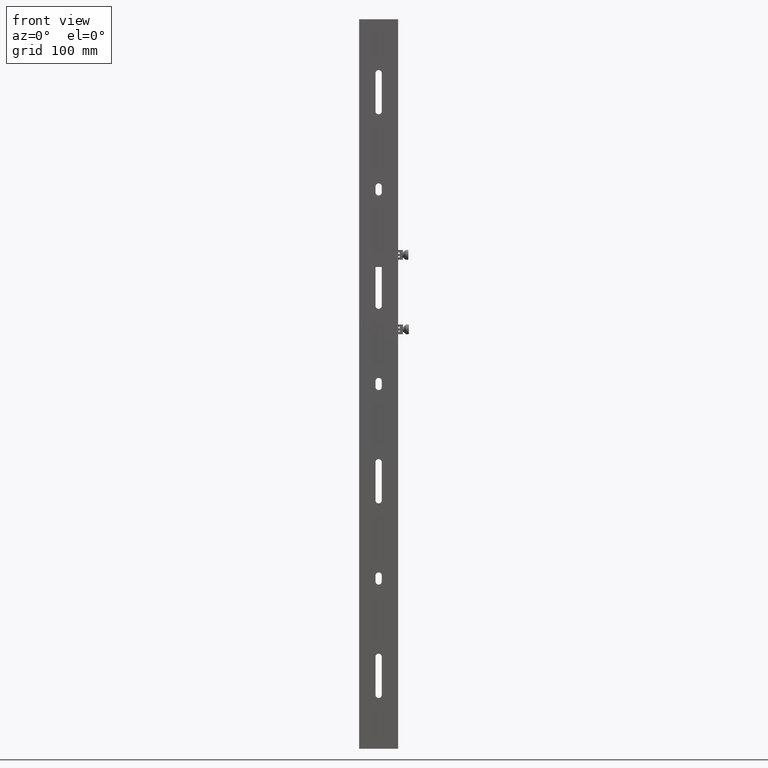
[diagram: clean part render]
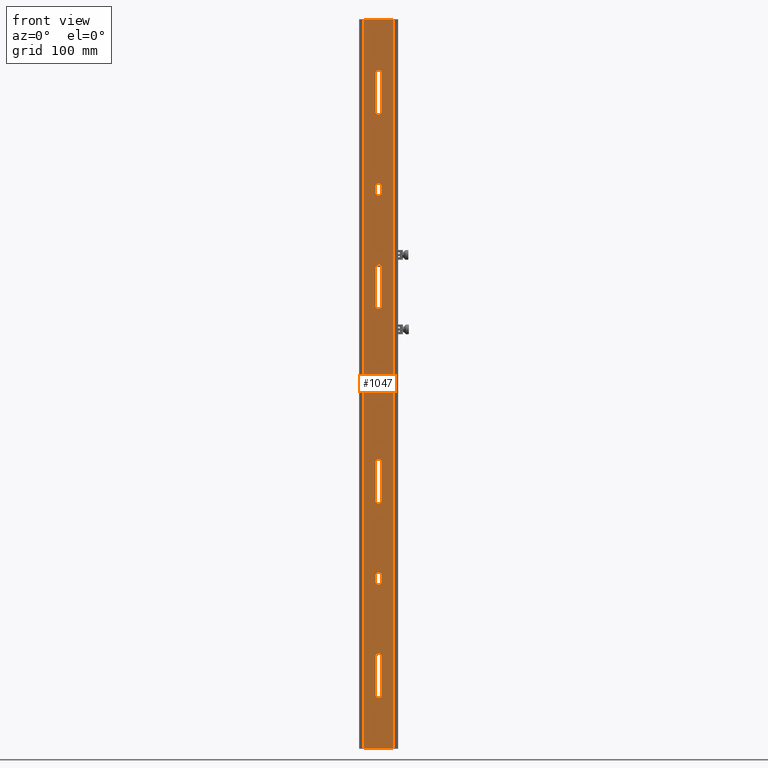
[diagram: same view with one face highlighted and labeled with its STEP entity id]
A machine part, front view. The second image highlights one B-rep face of the part: STEP entity #1047.
In plain terms, the highlighted planar face has unit normal (0, -1, 0).
Its self-contained STEP definition (entity closure, byte-faithful):
#38 = ORIENTED_EDGE ( 'NONE', *, *, #3731, .T. ) ;
#54 = CARTESIAN_POINT ( 'NONE',  ( 3.582091887506006239E-15, 119.5000000000000000, 5.999999999999996447 ) ) ;
#62 = LINE ( 'NONE', #4931, #339 ) ;
#65 = CARTESIAN_POINT ( 'NONE',  ( -3.250000000000001332, -119.5000000000000000, 5.999999999999996447 ) ) ;
#69 = VERTEX_POINT ( 'NONE', #140 ) ;
#74 = ORIENTED_EDGE ( 'NONE', *, *, #597, .T. ) ;
#140 = CARTESIAN_POINT ( 'NONE',  ( 3.249999999999997335, 203.0000000000000000, 5.999999999999996447 ) ) ;
#170 = VECTOR ( 'NONE', #5992, 1000.000000000000000 ) ;
#180 = ORIENTED_EDGE ( 'NONE', *, *, #4777, .T. ) ;
#250 = CARTESIAN_POINT ( 'NONE',  ( 5.510910596163088569E-16, -197.0000000000000000, 5.999999999999996447 ) ) ;
#273 = CARTESIAN_POINT ( 'NONE',  ( 3.249999999999996447, 197.0000000000000000, 5.999999999999996447 ) ) ;
#302 = CIRCLE ( 'NONE', #2728, 3.249999999999997780 ) ;
#339 = VECTOR ( 'NONE', #4373, 1000.000000000000000 ) ;
#346 = VECTOR ( 'NONE', #1276, 1000.000000000000000 ) ;
#381 = DIRECTION ( 'NONE',  ( 1.000000000000000000, 0.000000000000000000, 0.000000000000000000 ) ) ;
#426 = CARTESIAN_POINT ( 'NONE',  ( -3.249999999999998224, -2.999999999999999556, 5.999999999999996447 ) ) ;
#432 = DIRECTION ( 'NONE',  ( 1.000000000000000000, 0.000000000000000000, 0.000000000000000000 ) ) ;
#466 = CARTESIAN_POINT ( 'NONE',  ( 0.000000000000000000, 0.000000000000000000, 5.999999999999996447 ) ) ;
#472 = CIRCLE ( 'NONE', #1867, 3.249999999999997780 ) ;
#536 = EDGE_CURVE ( 'NONE', #918, #1851, #472, .T. ) ;
#551 = EDGE_CURVE ( 'NONE', #7131, #6088, #2245, .T. ) ;
#571 = CARTESIAN_POINT ( 'NONE',  ( -3.250000000000002665, 280.5000000000000000, 5.999999999999996447 ) ) ;
#597 = EDGE_CURVE ( 'NONE', #1305, #4832, #4667, .T. ) ;
#671 = VERTEX_POINT ( 'NONE', #3609 ) ;
#675 = LINE ( 'NONE', #1312, #346 ) ;
#721 = CARTESIAN_POINT ( 'NONE',  ( 3.249999999999996447, -5.970153145843339459E-16, 5.999999999999996447 ) ) ;
#741 = CARTESIAN_POINT ( 'NONE',  ( -3.249999999999997335, -197.0000000000000000, 5.999999999999996447 ) ) ;
#827 = DIRECTION ( 'NONE',  ( 1.000000000000000000, 0.000000000000000000, 0.000000000000000000 ) ) ;
#830 = DIRECTION ( 'NONE',  ( 1.000000000000000000, 0.000000000000000000, 0.000000000000000000 ) ) ;
#840 = LINE ( 'NONE', #6379, #2985 ) ;
#843 = DIRECTION ( 'NONE',  ( 0.000000000000000000, -1.000000000000000000, 0.000000000000000000 ) ) ;
#848 = LINE ( 'NONE', #3299, #7437 ) ;
#905 = DIRECTION ( 'NONE',  ( -0.000000000000000000, 0.000000000000000000, 1.000000000000000000 ) ) ;
#918 = VERTEX_POINT ( 'NONE', #7429 ) ;
#921 = DIRECTION ( 'NONE',  ( 1.000000000000000000, 0.000000000000000000, 0.000000000000000000 ) ) ;
#987 = VECTOR ( 'NONE', #4895, 1000.000000000000000 ) ;
#994 = AXIS2_PLACEMENT_3D ( 'NONE', #2115, #3321, #830 ) ;
#1047 = ADVANCED_FACE ( 'NONE', ( #5431, #5806, #2040, #7065, #6983, #7809, #1435, #1521 ), #2718, .T. ) ;
#1177 = ORIENTED_EDGE ( 'NONE', *, *, #4457, .F. ) ;
#1193 = AXIS2_PLACEMENT_3D ( 'NONE', #2772, #7724, #381 ) ;
#1197 = AXIS2_PLACEMENT_3D ( 'NONE', #5259, #7726, #4446 ) ;
#1198 = LINE ( 'NONE', #5644, #6673 ) ;
#1276 = DIRECTION ( 'NONE',  ( -1.836970198721027222E-16, -1.000000000000000000, 0.000000000000000000 ) ) ;
#1303 = CARTESIAN_POINT ( 'NONE',  ( 3.249999999999997335, -197.0000000000000000, 5.999999999999996447 ) ) ;
#1305 = VERTEX_POINT ( 'NONE', #5046 ) ;
#1312 = CARTESIAN_POINT ( 'NONE',  ( -3.250000000000055067, 5.970153145843440038E-16, 5.999999999999996447 ) ) ;
#1420 = DIRECTION ( 'NONE',  ( -1.836970198721027962E-16, -1.000000000000000000, 0.000000000000000000 ) ) ;
#1426 = EDGE_CURVE ( 'NONE', #2695, #671, #2978, .T. ) ;
#1435 = FACE_BOUND ( 'NONE', #2900, .T. ) ;
#1481 = CARTESIAN_POINT ( 'NONE',  ( 3.249999999999978240, -5.970153145843306918E-16, 5.999999999999996447 ) ) ;
#1484 = DIRECTION ( 'NONE',  ( -0.000000000000000000, 0.000000000000000000, 1.000000000000000000 ) ) ;
#1521 = FACE_BOUND ( 'NONE', #4277, .T. ) ;
#1554 = CARTESIAN_POINT ( 'NONE',  ( -14.99999999999999822, -375.0000000000000000, 5.999999999999998224 ) ) ;
#1563 = DIRECTION ( 'NONE',  ( 1.000000000000000000, 0.000000000000000000, 0.000000000000000000 ) ) ;
#1589 = EDGE_CURVE ( 'NONE', #2307, #7649, #840, .T. ) ;
#1631 = DIRECTION ( 'NONE',  ( -0.000000000000000000, 0.000000000000000000, 1.000000000000000000 ) ) ;
#1668 = DIRECTION ( 'NONE',  ( -0.000000000000000000, 0.000000000000000000, 1.000000000000000000 ) ) ;
#1679 = DIRECTION ( 'NONE',  ( 1.000000000000000000, 0.000000000000000000, 0.000000000000000000 ) ) ;
#1694 = CARTESIAN_POINT ( 'NONE',  ( -3.249999999999994227, -80.50000000000001421, 5.999999999999996447 ) ) ;
#1711 = ORIENTED_EDGE ( 'NONE', *, *, #6277, .F. ) ;
#1722 = EDGE_CURVE ( 'NONE', #1857, #2477, #302, .T. ) ;
#1742 = CARTESIAN_POINT ( 'NONE',  ( 3.249999999999998668, 319.5000000000000000, 5.999999999999996447 ) ) ;
#1751 = CARTESIAN_POINT ( 'NONE',  ( -3.249999999999994227, 119.5000000000000000, 5.999999999999996447 ) ) ;
#1773 = VERTEX_POINT ( 'NONE', #2623 ) ;
#1795 = EDGE_LOOP ( 'NONE', ( #5754, #5478, #74, #6810 ) ) ;
#1801 = LINE ( 'NONE', #721, #5242 ) ;
#1807 = EDGE_CURVE ( 'NONE', #3238, #4566, #2349, .T. ) ;
#1832 = DIRECTION ( 'NONE',  ( -1.836970198721029934E-16, -1.000000000000000000, 0.000000000000000000 ) ) ;
#1841 = VERTEX_POINT ( 'NONE', #1694 ) ;
#1846 = ORIENTED_EDGE ( 'NONE', *, *, #1722, .F. ) ;
#1851 = VERTEX_POINT ( 'NONE', #6034 ) ;
#1857 = VERTEX_POINT ( 'NONE', #6642 ) ;
#1867 = AXIS2_PLACEMENT_3D ( 'NONE', #5197, #3372, #1563 ) ;
#1873 = CARTESIAN_POINT ( 'NONE',  ( -14.99999999999999822, 375.0000000000000000, 5.999999999999996447 ) ) ;
#1883 = DIRECTION ( 'NONE',  ( -1.836970198721029441E-16, -1.000000000000000000, 0.000000000000000000 ) ) ;
#1924 = EDGE_CURVE ( 'NONE', #6088, #1773, #5950, .T. ) ;
#1950 = VECTOR ( 'NONE', #3461, 1000.000000000000000 ) ;
#2009 = DIRECTION ( 'NONE',  ( 1.000000000000000000, 0.000000000000000000, 0.000000000000000000 ) ) ;
#2013 = CARTESIAN_POINT ( 'NONE',  ( 1.795495241083097500E-15, 319.5000000000000000, 5.999999999999996447 ) ) ;
#2032 = EDGE_CURVE ( 'NONE', #7966, #2695, #3780, .T. ) ;
#2040 = FACE_OUTER_BOUND ( 'NONE', #3525, .T. ) ;
#2074 = LINE ( 'NONE', #6978, #6546 ) ;
#2100 = ORIENTED_EDGE ( 'NONE', *, *, #3449, .F. ) ;
#2115 = CARTESIAN_POINT ( 'NONE',  ( -5.510910596163088569E-16, -3.000000000000000000, 5.999999999999996447 ) ) ;
#2130 = CIRCLE ( 'NONE', #5227, 3.249999999999997780 ) ;
#2154 = CARTESIAN_POINT ( 'NONE',  ( 15.00000000000000178, 375.0000000000000000, 5.999999999999996447 ) ) ;
#2160 = CARTESIAN_POINT ( 'NONE',  ( 3.249999999999991562, 280.5000000000000000, 5.999999999999996447 ) ) ;
#2196 = DIRECTION ( 'NONE',  ( -0.000000000000000000, 0.000000000000000000, 1.000000000000000000 ) ) ;
#2204 = EDGE_CURVE ( 'NONE', #69, #7093, #7011, .T. ) ;
#2222 = EDGE_CURVE ( 'NONE', #2860, #7966, #3618, .T. ) ;
#2245 = LINE ( 'NONE', #4704, #6406 ) ;
#2261 = AXIS2_PLACEMENT_3D ( 'NONE', #2875, #5360, #1679 ) ;
#2265 = EDGE_CURVE ( 'NONE', #69, #2477, #7279, .T. ) ;
#2283 = ORIENTED_EDGE ( 'NONE', *, *, #2606, .F. ) ;
#2307 = VERTEX_POINT ( 'NONE', #5286 ) ;
#2323 = ORIENTED_EDGE ( 'NONE', *, *, #2204, .F. ) ;
#2343 = ORIENTED_EDGE ( 'NONE', *, *, #5681, .T. ) ;
#2349 = CIRCLE ( 'NONE', #1197, 3.249999999999997780 ) ;
#2368 = ORIENTED_EDGE ( 'NONE', *, *, #5921, .F. ) ;
#2425 = ORIENTED_EDGE ( 'NONE', *, *, #536, .F. ) ;
#2477 = VERTEX_POINT ( 'NONE', #273 ) ;
#2517 = VERTEX_POINT ( 'NONE', #7012 ) ;
#2606 = EDGE_CURVE ( 'NONE', #3103, #2307, #3104, .T. ) ;
#2612 = DIRECTION ( 'NONE',  ( 1.000000000000000000, 0.000000000000000000, 0.000000000000000000 ) ) ;
#2623 = CARTESIAN_POINT ( 'NONE',  ( 15.00000000000000178, -375.0000000000000000, 5.999999999999996447 ) ) ;
#2695 = VERTEX_POINT ( 'NONE', #6047 ) ;
#2701 = CARTESIAN_POINT ( 'NONE',  ( -5.510910596163088569E-16, 197.0000000000000000, 5.999999999999996447 ) ) ;
#2718 = PLANE ( 'NONE',  #2906 ) ;
#2728 = AXIS2_PLACEMENT_3D ( 'NONE', #2701, #905, #5701 ) ;
#2741 = ORIENTED_EDGE ( 'NONE', *, *, #6545, .T. ) ;
#2772 = CARTESIAN_POINT ( 'NONE',  ( -5.510910596163088569E-16, -203.0000000000000000, 5.999999999999996447 ) ) ;
#2799 = EDGE_CURVE ( 'NONE', #6244, #4566, #62, .T. ) ;
#2828 = DIRECTION ( 'NONE',  ( -1.836970198721029934E-16, -1.000000000000000000, 0.000000000000000000 ) ) ;
#2860 = VERTEX_POINT ( 'NONE', #1303 ) ;
#2875 = CARTESIAN_POINT ( 'NONE',  ( -3.582091887506006239E-15, 80.50000000000001421, 5.999999999999996447 ) ) ;
#2900 = EDGE_LOOP ( 'NONE', ( #4763, #3443, #7081, #3274 ) ) ;
#2906 = AXIS2_PLACEMENT_3D ( 'NONE', #466, #1668, #921 ) ;
#2914 = ORIENTED_EDGE ( 'NONE', *, *, #2265, .T. ) ;
#2978 = CIRCLE ( 'NONE', #1193, 3.249999999999997780 ) ;
#2985 = VECTOR ( 'NONE', #4509, 1000.000000000000000 ) ;
#3017 = ORIENTED_EDGE ( 'NONE', *, *, #1589, .F. ) ;
#3081 = ORIENTED_EDGE ( 'NONE', *, *, #6876, .F. ) ;
#3103 = VERTEX_POINT ( 'NONE', #7210 ) ;
#3104 = CIRCLE ( 'NONE', #5698, 3.249999999999997780 ) ;
#3128 = LINE ( 'NONE', #6750, #4348 ) ;
#3204 = LINE ( 'NONE', #3791, #987 ) ;
#3229 = LINE ( 'NONE', #5134, #4838 ) ;
#3238 = VERTEX_POINT ( 'NONE', #571 ) ;
#3244 = VECTOR ( 'NONE', #7961, 1000.000000000000000 ) ;
#3274 = ORIENTED_EDGE ( 'NONE', *, *, #2032, .F. ) ;
#3299 = CARTESIAN_POINT ( 'NONE',  ( 3.250000000000049738, -5.970153145843430178E-16, 5.999999999999996447 ) ) ;
#3321 = DIRECTION ( 'NONE',  ( -0.000000000000000000, 0.000000000000000000, 1.000000000000000000 ) ) ;
#3372 = DIRECTION ( 'NONE',  ( -0.000000000000000000, 0.000000000000000000, 1.000000000000000000 ) ) ;
#3443 = ORIENTED_EDGE ( 'NONE', *, *, #5143, .T. ) ;
#3449 = EDGE_CURVE ( 'NONE', #6232, #3593, #4844, .T. ) ;
#3461 = DIRECTION ( 'NONE',  ( -1.836970198721027962E-16, -1.000000000000000000, 0.000000000000000000 ) ) ;
#3490 = CARTESIAN_POINT ( 'NONE',  ( -3.249999999999997335, 203.0000000000000000, 5.999999999999996447 ) ) ;
#3525 = EDGE_LOOP ( 'NONE', ( #2343, #2741, #7132, #4863 ) ) ;
#3593 = VERTEX_POINT ( 'NONE', #6671 ) ;
#3609 = CARTESIAN_POINT ( 'NONE',  ( 3.249999999999996447, -203.0000000000000000, 5.999999999999996447 ) ) ;
#3618 = CIRCLE ( 'NONE', #5173, 3.249999999999997780 ) ;
#3688 = ORIENTED_EDGE ( 'NONE', *, *, #5546, .F. ) ;
#3731 = EDGE_CURVE ( 'NONE', #3103, #5679, #1801, .T. ) ;
#3780 = LINE ( 'NONE', #5578, #3244 ) ;
#3784 = DIRECTION ( 'NONE',  ( -0.000000000000000000, 0.000000000000000000, 1.000000000000000000 ) ) ;
#3791 = CARTESIAN_POINT ( 'NONE',  ( 15.00000000000000178, 375.0000000000000000, 5.999999999999996447 ) ) ;
#3866 = DIRECTION ( 'NONE',  ( 1.000000000000000000, 0.000000000000000000, 0.000000000000000000 ) ) ;
#3946 = DIRECTION ( 'NONE',  ( -1.836970198721029934E-16, -1.000000000000000000, 0.000000000000000000 ) ) ;
#4022 = CARTESIAN_POINT ( 'NONE',  ( 3.250000000000015099, -5.970153145843374957E-16, 5.999999999999996447 ) ) ;
#4058 = CARTESIAN_POINT ( 'NONE',  ( 3.249999999999991562, -319.5000000000000000, 5.999999999999996447 ) ) ;
#4100 = LINE ( 'NONE', #5928, #6419 ) ;
#4113 = CARTESIAN_POINT ( 'NONE',  ( -3.249999999999996447, 319.5000000000000000, 5.999999999999996447 ) ) ;
#4195 = CARTESIAN_POINT ( 'NONE',  ( -14.99999999999999822, -375.0000000000000000, 5.999999999999996447 ) ) ;
#4207 = VERTEX_POINT ( 'NONE', #1751 ) ;
#4277 = EDGE_LOOP ( 'NONE', ( #2323, #2914, #1846, #4971 ) ) ;
#4322 = VECTOR ( 'NONE', #6604, 1000.000000000000000 ) ;
#4348 = VECTOR ( 'NONE', #6255, 1000.000000000000000 ) ;
#4373 = DIRECTION ( 'NONE',  ( -1.836970198721027222E-16, -1.000000000000000000, 0.000000000000000000 ) ) ;
#4446 = DIRECTION ( 'NONE',  ( 1.000000000000000000, 0.000000000000000000, 0.000000000000000000 ) ) ;
#4457 = EDGE_CURVE ( 'NONE', #7177, #1841, #7704, .T. ) ;
#4509 = DIRECTION ( 'NONE',  ( -1.836970198721029441E-16, -1.000000000000000000, 0.000000000000000000 ) ) ;
#4566 = VERTEX_POINT ( 'NONE', #2160 ) ;
#4579 = AXIS2_PLACEMENT_3D ( 'NONE', #5075, #7555, #2009 ) ;
#4667 = LINE ( 'NONE', #1481, #4967 ) ;
#4704 = CARTESIAN_POINT ( 'NONE',  ( -14.99999999999999822, 375.0000000000000000, 5.999999999999996447 ) ) ;
#4756 = CARTESIAN_POINT ( 'NONE',  ( 3.249999999999960032, -5.970153145843267475E-16, 5.999999999999996447 ) ) ;
#4763 = ORIENTED_EDGE ( 'NONE', *, *, #2222, .F. ) ;
#4777 = EDGE_CURVE ( 'NONE', #918, #5413, #848, .T. ) ;
#4806 = DIRECTION ( 'NONE',  ( -0.000000000000000000, 0.000000000000000000, 1.000000000000000000 ) ) ;
#4820 = VERTEX_POINT ( 'NONE', #4113 ) ;
#4827 = ORIENTED_EDGE ( 'NONE', *, *, #2799, .T. ) ;
#4832 = VERTEX_POINT ( 'NONE', #7915 ) ;
#4838 = VECTOR ( 'NONE', #1420, 1000.000000000000000 ) ;
#4844 = CIRCLE ( 'NONE', #4579, 3.249999999999997780 ) ;
#4863 = ORIENTED_EDGE ( 'NONE', *, *, #1924, .T. ) ;
#4895 = DIRECTION ( 'NONE',  ( -0.000000000000000000, 1.000000000000000000, -0.000000000000000000 ) ) ;
#4931 = CARTESIAN_POINT ( 'NONE',  ( 3.249999999999939604, -5.970153145843228032E-16, 5.999999999999996447 ) ) ;
#4967 = VECTOR ( 'NONE', #3946, 1000.000000000000000 ) ;
#4971 = ORIENTED_EDGE ( 'NONE', *, *, #6381, .F. ) ;
#4990 = ORIENTED_EDGE ( 'NONE', *, *, #5872, .F. ) ;
#5025 = CARTESIAN_POINT ( 'NONE',  ( 3.250000000000000444, -80.50000000000001421, 5.999999999999996447 ) ) ;
#5046 = CARTESIAN_POINT ( 'NONE',  ( 3.250000000000000444, 119.5000000000000000, 5.999999999999996447 ) ) ;
#5049 = ORIENTED_EDGE ( 'NONE', *, *, #7375, .F. ) ;
#5075 = CARTESIAN_POINT ( 'NONE',  ( -3.582091887506006239E-15, -119.5000000000000000, 5.999999999999996447 ) ) ;
#5133 = EDGE_LOOP ( 'NONE', ( #2425, #180, #1711, #2368 ) ) ;
#5134 = CARTESIAN_POINT ( 'NONE',  ( -3.250000000000034639, 5.970153145843403554E-16, 5.999999999999996447 ) ) ;
#5143 = EDGE_CURVE ( 'NONE', #2860, #671, #3128, .T. ) ;
#5162 = DIRECTION ( 'NONE',  ( -1.836970198721027222E-16, -1.000000000000000000, 0.000000000000000000 ) ) ;
#5173 = AXIS2_PLACEMENT_3D ( 'NONE', #250, #1484, #3866 ) ;
#5174 = DIRECTION ( 'NONE',  ( 1.000000000000000000, 0.000000000000000000, 0.000000000000000000 ) ) ;
#5197 = CARTESIAN_POINT ( 'NONE',  ( 1.795495241083097500E-15, -280.5000000000000000, 5.999999999999996447 ) ) ;
#5213 = LINE ( 'NONE', #7249, #4322 ) ;
#5222 = EDGE_LOOP ( 'NONE', ( #3081, #4827, #7769, #3688 ) ) ;
#5227 = AXIS2_PLACEMENT_3D ( 'NONE', #6206, #6316, #5174 ) ;
#5242 = VECTOR ( 'NONE', #1883, 1000.000000000000000 ) ;
#5259 = CARTESIAN_POINT ( 'NONE',  ( -5.368688533928914978E-15, 280.5000000000000000, 5.999999999999996447 ) ) ;
#5286 = CARTESIAN_POINT ( 'NONE',  ( -3.249999999999997335, 3.000000000000000444, 5.999999999999996447 ) ) ;
#5296 = EDGE_CURVE ( 'NONE', #7177, #3593, #5405, .T. ) ;
#5360 = DIRECTION ( 'NONE',  ( -0.000000000000000000, 0.000000000000000000, 1.000000000000000000 ) ) ;
#5369 = CIRCLE ( 'NONE', #2261, 3.249999999999997780 ) ;
#5405 = LINE ( 'NONE', #4022, #7823 ) ;
#5413 = VERTEX_POINT ( 'NONE', #4058 ) ;
#5431 = FACE_BOUND ( 'NONE', #6741, .T. ) ;
#5436 = ORIENTED_EDGE ( 'NONE', *, *, #5296, .T. ) ;
#5478 = ORIENTED_EDGE ( 'NONE', *, *, #6648, .F. ) ;
#5543 = EDGE_CURVE ( 'NONE', #4207, #2517, #1198, .T. ) ;
#5546 = EDGE_CURVE ( 'NONE', #4820, #3238, #675, .T. ) ;
#5578 = CARTESIAN_POINT ( 'NONE',  ( -3.249999999999961364, 5.970153145843270433E-16, 5.999999999999996447 ) ) ;
#5644 = CARTESIAN_POINT ( 'NONE',  ( -3.250000000000016431, 5.970153145843376929E-16, 5.999999999999996447 ) ) ;
#5662 = EDGE_LOOP ( 'NONE', ( #1177, #5436, #2100, #5049 ) ) ;
#5679 = VERTEX_POINT ( 'NONE', #6894 ) ;
#5681 = EDGE_CURVE ( 'NONE', #1773, #7472, #3204, .T. ) ;
#5698 = AXIS2_PLACEMENT_3D ( 'NONE', #7660, #2196, #827 ) ;
#5701 = DIRECTION ( 'NONE',  ( 1.000000000000000000, 0.000000000000000000, 0.000000000000000000 ) ) ;
#5752 = AXIS2_PLACEMENT_3D ( 'NONE', #2013, #3784, #7709 ) ;
#5754 = ORIENTED_EDGE ( 'NONE', *, *, #5543, .F. ) ;
#5806 = FACE_BOUND ( 'NONE', #1795, .T. ) ;
#5872 = EDGE_CURVE ( 'NONE', #7649, #5679, #7953, .T. ) ;
#5921 = EDGE_CURVE ( 'NONE', #1851, #6899, #2074, .T. ) ;
#5928 = CARTESIAN_POINT ( 'NONE',  ( -3.249999999999979572, 5.970153145843309876E-16, 5.999999999999996447 ) ) ;
#5950 = LINE ( 'NONE', #4195, #170 ) ;
#5992 = DIRECTION ( 'NONE',  ( 1.000000000000000000, 0.000000000000000000, 0.000000000000000000 ) ) ;
#6034 = CARTESIAN_POINT ( 'NONE',  ( -3.249999999999996447, -280.5000000000000000, 5.999999999999996447 ) ) ;
#6047 = CARTESIAN_POINT ( 'NONE',  ( -3.249999999999998224, -203.0000000000000000, 5.999999999999996447 ) ) ;
#6088 = VERTEX_POINT ( 'NONE', #1554 ) ;
#6206 = CARTESIAN_POINT ( 'NONE',  ( -5.368688533928914978E-15, -319.5000000000000000, 5.999999999999996447 ) ) ;
#6232 = VERTEX_POINT ( 'NONE', #65 ) ;
#6244 = VERTEX_POINT ( 'NONE', #1742 ) ;
#6255 = DIRECTION ( 'NONE',  ( -1.836970198721027962E-16, -1.000000000000000000, 0.000000000000000000 ) ) ;
#6277 = EDGE_CURVE ( 'NONE', #6899, #5413, #2130, .T. ) ;
#6316 = DIRECTION ( 'NONE',  ( -0.000000000000000000, 0.000000000000000000, 1.000000000000000000 ) ) ;
#6379 = CARTESIAN_POINT ( 'NONE',  ( -3.249999999999998224, 5.970153145843342417E-16, 5.999999999999996447 ) ) ;
#6381 = EDGE_CURVE ( 'NONE', #7093, #1857, #3229, .T. ) ;
#6386 = DIRECTION ( 'NONE',  ( -0.000000000000000000, 0.000000000000000000, 1.000000000000000000 ) ) ;
#6406 = VECTOR ( 'NONE', #843, 1000.000000000000000 ) ;
#6419 = VECTOR ( 'NONE', #2828, 1000.000000000000000 ) ;
#6545 = EDGE_CURVE ( 'NONE', #7472, #7131, #5213, .T. ) ;
#6546 = VECTOR ( 'NONE', #7099, 1000.000000000000000 ) ;
#6581 = DIRECTION ( 'NONE',  ( -1.836970198721029934E-16, -1.000000000000000000, 0.000000000000000000 ) ) ;
#6604 = DIRECTION ( 'NONE',  ( -1.000000000000000000, -0.000000000000000000, -0.000000000000000000 ) ) ;
#6642 = CARTESIAN_POINT ( 'NONE',  ( -3.249999999999998224, 197.0000000000000000, 5.999999999999996447 ) ) ;
#6648 = EDGE_CURVE ( 'NONE', #1305, #4207, #6793, .T. ) ;
#6661 = CARTESIAN_POINT ( 'NONE',  ( -3.250000000000002665, -319.5000000000000000, 5.999999999999996447 ) ) ;
#6670 = CIRCLE ( 'NONE', #5752, 3.249999999999997780 ) ;
#6671 = CARTESIAN_POINT ( 'NONE',  ( 3.249999999999993339, -119.5000000000000000, 5.999999999999996447 ) ) ;
#6673 = VECTOR ( 'NONE', #1832, 1000.000000000000000 ) ;
#6741 = EDGE_LOOP ( 'NONE', ( #3017, #2283, #38, #4990 ) ) ;
#6750 = CARTESIAN_POINT ( 'NONE',  ( 3.250000000000033307, -5.970153145843401581E-16, 5.999999999999996447 ) ) ;
#6793 = CIRCLE ( 'NONE', #7188, 3.249999999999997780 ) ;
#6803 = DIRECTION ( 'NONE',  ( 1.000000000000000000, 0.000000000000000000, 0.000000000000000000 ) ) ;
#6810 = ORIENTED_EDGE ( 'NONE', *, *, #6908, .F. ) ;
#6876 = EDGE_CURVE ( 'NONE', #6244, #4820, #6670, .T. ) ;
#6894 = CARTESIAN_POINT ( 'NONE',  ( 3.249999999999996003, -3.000000000000000444, 5.999999999999996447 ) ) ;
#6899 = VERTEX_POINT ( 'NONE', #6661 ) ;
#6908 = EDGE_CURVE ( 'NONE', #2517, #4832, #5369, .T. ) ;
#6978 = CARTESIAN_POINT ( 'NONE',  ( -3.249999999999944933, 5.970153145843236907E-16, 5.999999999999996447 ) ) ;
#6983 = FACE_BOUND ( 'NONE', #5222, .T. ) ;
#7011 = CIRCLE ( 'NONE', #7657, 3.249999999999997780 ) ;
#7012 = CARTESIAN_POINT ( 'NONE',  ( -3.250000000000001332, 80.50000000000001421, 5.999999999999996447 ) ) ;
#7065 = FACE_BOUND ( 'NONE', #5133, .T. ) ;
#7076 = CARTESIAN_POINT ( 'NONE',  ( 5.510910596163088569E-16, 203.0000000000000000, 5.999999999999996447 ) ) ;
#7081 = ORIENTED_EDGE ( 'NONE', *, *, #1426, .F. ) ;
#7093 = VERTEX_POINT ( 'NONE', #3490 ) ;
#7099 = DIRECTION ( 'NONE',  ( -1.836970198721027222E-16, -1.000000000000000000, 0.000000000000000000 ) ) ;
#7131 = VERTEX_POINT ( 'NONE', #1873 ) ;
#7132 = ORIENTED_EDGE ( 'NONE', *, *, #551, .T. ) ;
#7177 = VERTEX_POINT ( 'NONE', #5025 ) ;
#7188 = AXIS2_PLACEMENT_3D ( 'NONE', #54, #4806, #6803 ) ;
#7210 = CARTESIAN_POINT ( 'NONE',  ( 3.249999999999997335, 3.000000000000000000, 5.999999999999996447 ) ) ;
#7249 = CARTESIAN_POINT ( 'NONE',  ( -14.99999999999999822, 375.0000000000000000, 5.999999999999996447 ) ) ;
#7279 = LINE ( 'NONE', #4756, #1950 ) ;
#7375 = EDGE_CURVE ( 'NONE', #1841, #6232, #4100, .T. ) ;
#7429 = CARTESIAN_POINT ( 'NONE',  ( 3.249999999999998668, -280.5000000000000000, 5.999999999999996447 ) ) ;
#7437 = VECTOR ( 'NONE', #5162, 1000.000000000000000 ) ;
#7454 = AXIS2_PLACEMENT_3D ( 'NONE', #7814, #1631, #432 ) ;
#7472 = VERTEX_POINT ( 'NONE', #2154 ) ;
#7555 = DIRECTION ( 'NONE',  ( -0.000000000000000000, 0.000000000000000000, 1.000000000000000000 ) ) ;
#7649 = VERTEX_POINT ( 'NONE', #426 ) ;
#7657 = AXIS2_PLACEMENT_3D ( 'NONE', #7076, #6386, #2612 ) ;
#7660 = CARTESIAN_POINT ( 'NONE',  ( 5.510910596163088569E-16, 3.000000000000000000, 5.999999999999996447 ) ) ;
#7704 = CIRCLE ( 'NONE', #7454, 3.249999999999997780 ) ;
#7709 = DIRECTION ( 'NONE',  ( 1.000000000000000000, 0.000000000000000000, 0.000000000000000000 ) ) ;
#7724 = DIRECTION ( 'NONE',  ( -0.000000000000000000, 0.000000000000000000, 1.000000000000000000 ) ) ;
#7726 = DIRECTION ( 'NONE',  ( -0.000000000000000000, 0.000000000000000000, 1.000000000000000000 ) ) ;
#7769 = ORIENTED_EDGE ( 'NONE', *, *, #1807, .F. ) ;
#7809 = FACE_BOUND ( 'NONE', #5662, .T. ) ;
#7814 = CARTESIAN_POINT ( 'NONE',  ( 3.582091887506006239E-15, -80.50000000000001421, 5.999999999999996447 ) ) ;
#7823 = VECTOR ( 'NONE', #6581, 1000.000000000000000 ) ;
#7915 = CARTESIAN_POINT ( 'NONE',  ( 3.249999999999992895, 80.50000000000001421, 5.999999999999996447 ) ) ;
#7953 = CIRCLE ( 'NONE', #994, 3.249999999999997780 ) ;
#7961 = DIRECTION ( 'NONE',  ( -1.836970198721027962E-16, -1.000000000000000000, 0.000000000000000000 ) ) ;
#7966 = VERTEX_POINT ( 'NONE', #741 ) ;